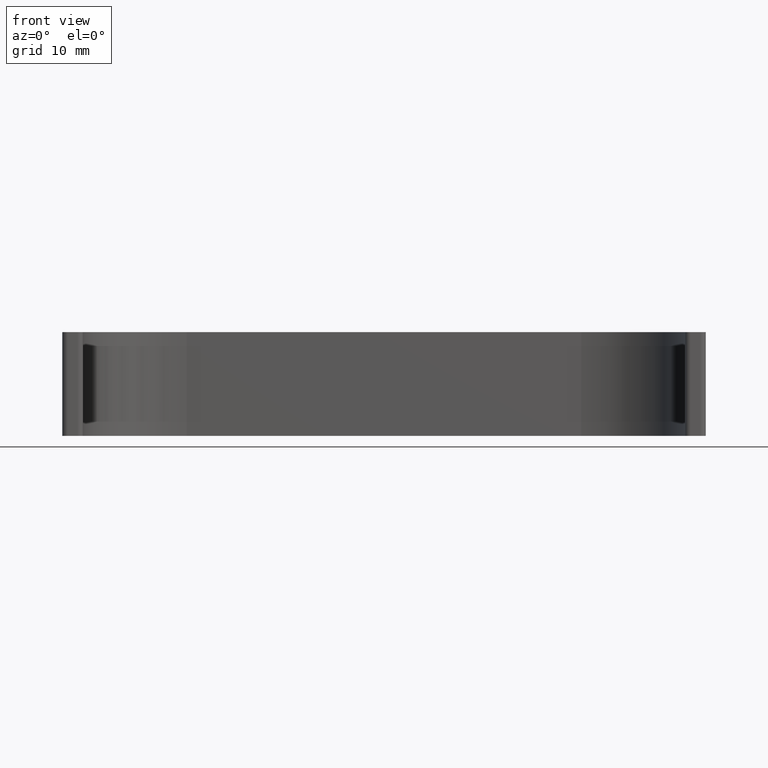
[diagram: clean part render]
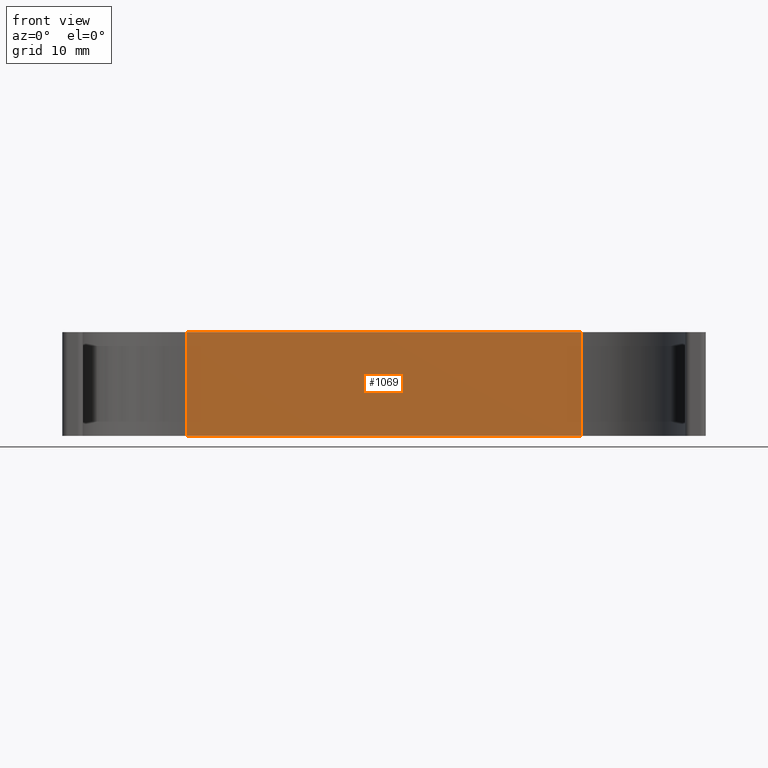
[diagram: same view with one face highlighted and labeled with its STEP entity id]
A machine part, front view. The second image highlights one B-rep face of the part: STEP entity #1069.
In plain terms, the highlighted planar face has unit normal (0, -1, 0).
Its self-contained STEP definition (entity closure, byte-faithful):
#22=PLANE('',#1173);
#62=FACE_OUTER_BOUND('',#118,.T.);
#118=EDGE_LOOP('',(#864,#865,#866,#867));
#187=LINE('',#1632,#303);
#207=LINE('',#1693,#323);
#210=LINE('',#1701,#326);
#235=LINE('',#1782,#351);
#303=VECTOR('',#1284,38.);
#323=VECTOR('',#1346,10.);
#326=VECTOR('',#1355,38.);
#351=VECTOR('',#1414,10.);
#483=VERTEX_POINT('',#1629);
#484=VERTEX_POINT('',#1631);
#504=VERTEX_POINT('',#1692);
#506=VERTEX_POINT('',#1700);
#591=EDGE_CURVE('',#484,#483,#187,.T.);
#622=EDGE_CURVE('',#504,#484,#207,.T.);
#626=EDGE_CURVE('',#504,#506,#210,.T.);
#667=EDGE_CURVE('',#506,#483,#235,.T.);
#864=ORIENTED_EDGE('',*,*,#591,.T.);
#865=ORIENTED_EDGE('',*,*,#667,.F.);
#866=ORIENTED_EDGE('',*,*,#626,.F.);
#867=ORIENTED_EDGE('',*,*,#622,.T.);
#1069=ADVANCED_FACE('',(#62),#22,.T.);
#1173=AXIS2_PLACEMENT_3D('',#1781,#1412,#1413);
#1284=DIRECTION('',(1.,0.,0.));
#1346=DIRECTION('',(0.,0.,-1.));
#1355=DIRECTION('',(1.,0.,0.));
#1412=DIRECTION('center_axis',(0.,-1.,0.));
#1413=DIRECTION('ref_axis',(0.,0.,-1.));
#1414=DIRECTION('',(0.,0.,-1.));
#1629=CARTESIAN_POINT('',(11.,3.99999999999999,-5.));
#1631=CARTESIAN_POINT('',(-27.,3.99999999999999,-5.));
#1632=CARTESIAN_POINT('',(-23.,3.99999999999999,-5.));
#1692=CARTESIAN_POINT('',(-27.,3.99999999999999,5.));
#1693=CARTESIAN_POINT('',(-27.,3.99999999999999,0.));
#1700=CARTESIAN_POINT('',(11.,3.99999999999999,5.));
#1701=CARTESIAN_POINT('',(7.00000000000002,3.99999999999999,5.));
#1781=CARTESIAN_POINT('Origin',(21.,3.99999999999999,0.));
#1782=CARTESIAN_POINT('',(11.,3.99999999999999,0.));